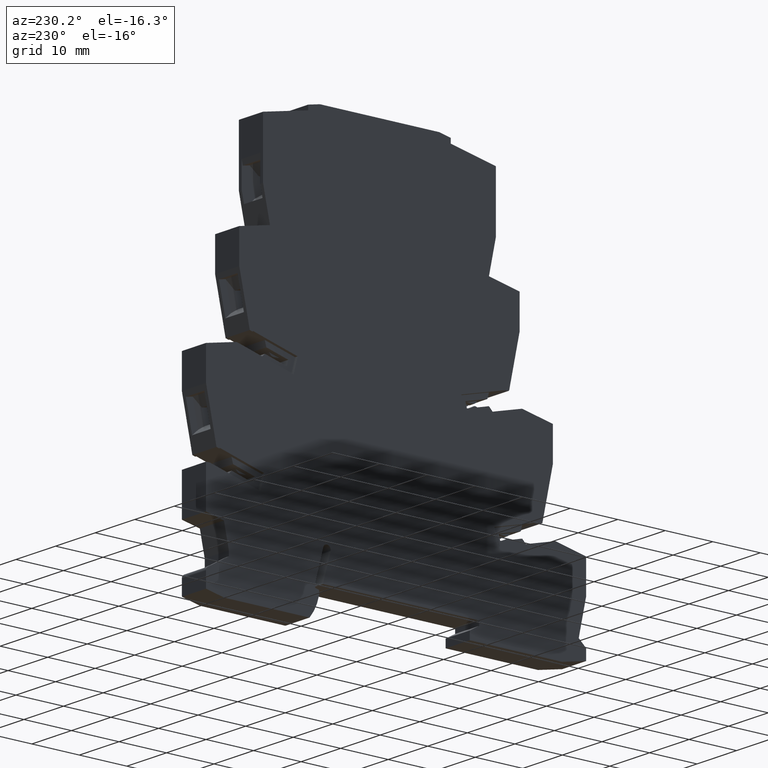
[diagram: clean part render]
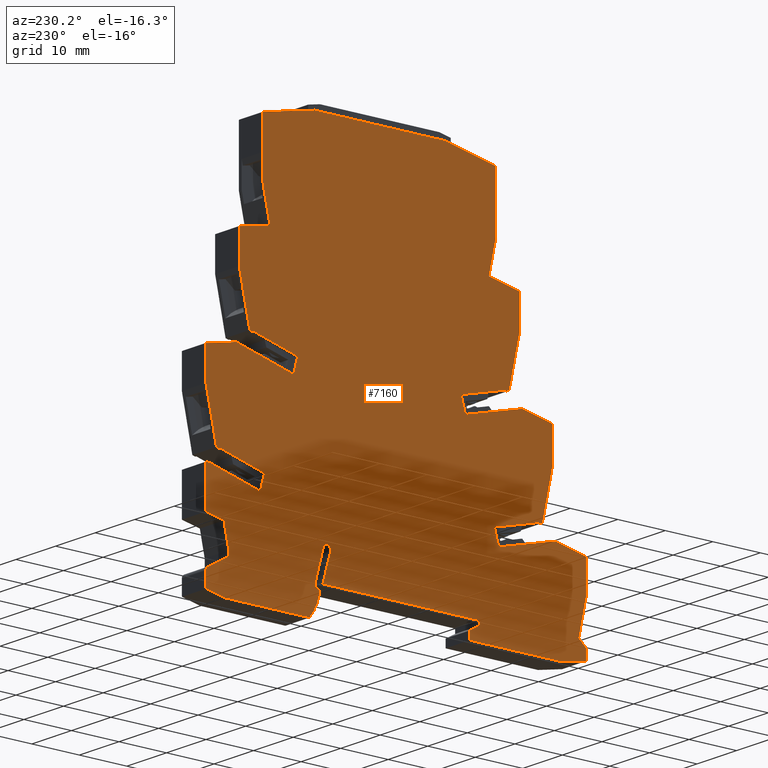
[diagram: same view with one face highlighted and labeled with its STEP entity id]
A machine part, auxiliary view. The second image highlights one B-rep face of the part: STEP entity #7160.
In plain terms, the highlighted planar face has unit normal (-1, 0, 0).
Its self-contained STEP definition (entity closure, byte-faithful):
#980=CARTESIAN_POINT('',(10.8989506709972,89.8469728276914,
-6.10000000000241));
#990=VERTEX_POINT('',#980);
#1560=CARTESIAN_POINT('',(32.3989506709835,-0.0400571378610444,
-6.10000000000098));
#1570=DIRECTION('',(6.88518490957563E-14,5.76150921077459E-16,-1.));
#1580=DIRECTION('',(-1.06445956345116E-13,-1.,-5.76150921084788E-16));
#1590=AXIS2_PLACEMENT_3D('',#1560,#1570,#1580);
#1600=PLANE('',#1590);
#1610=CARTESIAN_POINT('',(1.74895067094092,94.2842395895858,
-6.10000000000304));
#1620=DIRECTION('',(0.978147600733828,0.207911690817655,
6.74738043215939E-14));
#1630=VECTOR('',#1620,1.);
#1640=LINE('',#1610,#1630);
#1650=CARTESIAN_POINT('',(-28.601049329011,87.8331479429142,
-6.10000000000513));
#1660=VERTEX_POINT('',#1650);
#1670=CARTESIAN_POINT('',(-19.1010493290036,89.8524352787799,
-6.10000000000447));
#1680=VERTEX_POINT('',#1670);
#1690=EDGE_CURVE('',#1660,#1680,#1640,.T.);
#1700=ORIENTED_EDGE('',*,*,#1690,.T.);
#1710=CARTESIAN_POINT('',(-28.6010493290213,-8.45742666263268,
-6.10000000000518));
#1720=DIRECTION('',(1.06602284719999E-13,1.,5.76150921084798E-16));
#1730=VECTOR('',#1720,1.);
#1740=LINE('',#1710,#1730);
#1750=CARTESIAN_POINT('',(-28.6010493290123,75.8542440708255,
-6.10000000000514));
#1760=VERTEX_POINT('',#1750);
#1770=EDGE_CURVE('',#1760,#1660,#1740,.T.);
#1780=ORIENTED_EDGE('',*,*,#1770,.T.);
#1790=CARTESIAN_POINT('',(-13.1437031751925,3.13314794290579,
-6.10000000000747));
#1800=DIRECTION('',(-0.207911690817682,0.978147600733822,
8.36656496960324E-16));
#1810=VECTOR('',#1800,1.);
#1820=LINE('',#1790,#1810);
#1830=CARTESIAN_POINT('',(-27.1452751641698,69.0053651023039,
-6.10000000000504));
#1840=VERTEX_POINT('',#1830);
#1850=EDGE_CURVE('',#1840,#1760,#1820,.T.);
#1860=ORIENTED_EDGE('',*,*,#1850,.T.);
#1870=CARTESIAN_POINT('',(-0.601049329012426,74.6475144780145,
-6.10000000000744));
#1880=DIRECTION('',(0.978147600733828,0.207911690817653,
-1.16685635104763E-15));
#1890=VECTOR('',#1880,1.);
#1900=LINE('',#1870,#1890);
#1910=CARTESIAN_POINT('',(-33.6010493290131,67.6331479429074,
-6.10000000000315));
#1920=VERTEX_POINT('',#1910);
#1930=EDGE_CURVE('',#1920,#1840,#1900,.T.);
#1940=ORIENTED_EDGE('',*,*,#1930,.T.);
#1950=CARTESIAN_POINT('',(-33.60104932902,3.13314794290797,
-6.10000000000744));
#1960=DIRECTION('',(1.06602284719999E-13,1.,5.76150921084779E-16));
#1970=VECTOR('',#1960,1.);
#1980=LINE('',#1950,#1970);
#1990=CARTESIAN_POINT('',(-33.6010493290138,60.8995198602659,
-6.10000000000315));
#2000=VERTEX_POINT('',#1990);
#2010=EDGE_CURVE('',#2000,#1920,#1980,.T.);
#2020=ORIENTED_EDGE('',*,*,#2010,.T.);
#2030=CARTESIAN_POINT('',(-21.322427934116,3.13314794290666,
-6.10000000000746));
#2040=DIRECTION('',(0.207911690817634,-0.978147600733832,
-8.36656496960278E-16));
#2050=VECTOR('',#2040,1.);
#2060=LINE('',#2030,#2050);
#2070=CARTESIAN_POINT('',(-31.3969623182073,50.5301057453087,
-6.10000000000316));
#2080=VERTEX_POINT('',#2070);
#2090=EDGE_CURVE('',#2000,#2080,#2060,.T.);
#2100=ORIENTED_EDGE('',*,*,#2090,.F.);
#2110=CARTESIAN_POINT('',(-0.601049329015876,42.2783657296701,
-6.10000000000746));
#2120=DIRECTION('',(0.965925826289024,-0.258819045102685,
-1.41476425723172E-15));
#2130=VECTOR('',#2120,1.);
#2140=LINE('',#2110,#2130);
#2150=CARTESIAN_POINT('',(-30.7557445446555,50.3582919607129,
-6.10000000000316));
#2160=VERTEX_POINT('',#2150);
#2170=EDGE_CURVE('',#2080,#2160,#2140,.T.);
#2180=ORIENTED_EDGE('',*,*,#2170,.F.);
#2190=CARTESIAN_POINT('',(-43.4096837466777,3.13314794290902,
-6.10000000000743));
#2200=DIRECTION('',(0.258819045102677,0.965925826289027,
1.77488469595945E-16));
#2210=VECTOR('',#2200,1.);
#2220=LINE('',#2190,#2210);
#2230=CARTESIAN_POINT('',(-30.7169289084358,50.5031538872128,
-6.10000000000316));
#2240=VERTEX_POINT('',#2230);
#2250=EDGE_CURVE('',#2160,#2240,#2220,.T.);
#2260=ORIENTED_EDGE('',*,*,#2250,.F.);
#2270=CARTESIAN_POINT('',(-0.60104932901586,42.4336283140389,
-6.10000000000746));
#2280=DIRECTION('',(0.96592582628908,-0.258819045102478,
-1.41476425723167E-15));
#2290=VECTOR('',#2280,1.);
#2300=LINE('',#2270,#2290);
#2310=CARTESIAN_POINT('',(-21.3136920693128,47.9835641699302,
-6.10000000000317));
#2320=VERTEX_POINT('',#2310);
#2330=EDGE_CURVE('',#2240,#2320,#2300,.T.);
#2340=ORIENTED_EDGE('',*,*,#2330,.F.);
#2350=CARTESIAN_POINT('',(-33.3313248775482,3.13314794290794,
-6.10000000000744));
#2360=DIRECTION('',(-0.258819045102621,-0.965925826289041,
-1.91366257403826E-16));
#2370=VECTOR('',#2360,1.);
#2380=LINE('',#2350,#2370);
#2390=CARTESIAN_POINT('',(-22.16779491819,44.7960089430328,
-6.10000000000317));
#2400=VERTEX_POINT('',#2390);
#2410=EDGE_CURVE('',#2320,#2400,#2380,.T.);
#2420=ORIENTED_EDGE('',*,*,#2410,.F.);
#2430=CARTESIAN_POINT('',(-0.601049329016226,39.01721691871,
-6.10000000000746));
#2440=DIRECTION('',(-0.965925826289038,0.258819045102634,
1.4147642572317E-15));
#2450=VECTOR('',#2440,1.);
#2460=LINE('',#2430,#2450);
#2470=CARTESIAN_POINT('',(-34.1452751633213,48.0053651020769,
-6.10000000000316));
#2480=VERTEX_POINT('',#2470);
#2490=EDGE_CURVE('',#2400,#2480,#2460,.T.);
#2500=ORIENTED_EDGE('',*,*,#2490,.F.);
#2510=CARTESIAN_POINT('',(-0.601049329014506,55.1354104097048,
-6.10000000000745));
#2520=DIRECTION('',(0.978147600733828,0.207911690817653,
-1.16685635104763E-15));
#2530=VECTOR('',#2520,1.);
#2540=LINE('',#2510,#2530);
#2550=CARTESIAN_POINT('',(-40.6010493290153,46.6331479429083,
-6.10000000000315));
#2560=VERTEX_POINT('',#2550);
#2570=EDGE_CURVE('',#2560,#2480,#2540,.T.);
#2580=ORIENTED_EDGE('',*,*,#2570,.T.);
#2590=CARTESIAN_POINT('',(-40.60104932902,3.13314794290872,
-6.10000000000743));
#2600=DIRECTION('',(1.06602284719999E-13,1.,5.76150921084779E-16));
#2610=VECTOR('',#2600,1.);
#2620=LINE('',#2590,#2610);
#2630=CARTESIAN_POINT('',(-40.601049329016,39.8995198602663,
-6.10000000000315));
#2640=VERTEX_POINT('',#2630);
#2650=EDGE_CURVE('',#2640,#2560,#2620,.T.);
#2660=ORIENTED_EDGE('',*,*,#2650,.T.);
#2670=CARTESIAN_POINT('',(-32.7861157291861,3.13314794290788,
-6.10000000000744));
#2680=DIRECTION('',(-0.207911690817633,0.978147600733832,
8.36656496960276E-16));
#2690=VECTOR('',#2680,1.);
#2700=LINE('',#2670,#2690);
#2710=CARTESIAN_POINT('',(-38.3969558083118,29.5300751186479,
-6.10000000000316));
#2720=VERTEX_POINT('',#2710);
#2730=EDGE_CURVE('',#2720,#2640,#2700,.T.);
#2740=ORIENTED_EDGE('',*,*,#2730,.T.);
#2750=CARTESIAN_POINT('',(-0.601049329018316,19.4026925003169,
-6.10000000000747));
#2760=DIRECTION('',(-0.965925826289055,0.258819045102571,
1.40088646942388E-15));
#2770=VECTOR('',#2760,1.);
#2780=LINE('',#2750,#2770);
#2790=CARTESIAN_POINT('',(-37.7557517652426,29.358265013124,
-6.10000000000316));
#2800=VERTEX_POINT('',#2790);
#2810=EDGE_CURVE('',#2800,#2720,#2780,.T.);
#2820=ORIENTED_EDGE('',*,*,#2810,.T.);
#2830=CARTESIAN_POINT('',(-44.7827507056228,3.13314794290916,
-6.10000000000743));
#2840=DIRECTION('',(-0.258819045102677,-0.965925826289027,
-1.77488469595945E-16));
#2850=VECTOR('',#2840,1.);
#2860=LINE('',#2830,#2850);
#2870=CARTESIAN_POINT('',(-37.716928908438,29.5031538872136,
-6.10000000000316));
#2880=VERTEX_POINT('',#2870);
#2890=EDGE_CURVE('',#2880,#2800,#2860,.T.);
#2900=ORIENTED_EDGE('',*,*,#2890,.T.);
#2910=CARTESIAN_POINT('',(-0.601049329018299,19.5579839670222,
-6.10000000000747));
#2920=DIRECTION('',(0.96592582628908,-0.258819045102478,
-1.41476425723167E-15));
#2930=VECTOR('',#2920,1.);
#2940=LINE('',#2910,#2930);
#2950=CARTESIAN_POINT('',(-28.313692069315,26.9835641699309,
-6.10000000000318));
#2960=VERTEX_POINT('',#2950);
#2970=EDGE_CURVE('',#2880,#2960,#2940,.T.);
#2980=ORIENTED_EDGE('',*,*,#2970,.F.);
#2990=CARTESIAN_POINT('',(-34.7043918364946,3.13314794290809,
-6.10000000000744));
#3000=DIRECTION('',(-0.258819045102621,-0.965925826289041,
-1.91366257403826E-16));
#3010=VECTOR('',#3000,1.);
#3020=LINE('',#2990,#3010);
#3030=CARTESIAN_POINT('',(-29.1677949181921,23.7960089430335,
-6.10000000000318));
#3040=VERTEX_POINT('',#3030);
#3050=EDGE_CURVE('',#2960,#3040,#3020,.T.);
#3060=ORIENTED_EDGE('',*,*,#3050,.F.);
#3070=CARTESIAN_POINT('',(-0.601049329018663,16.1415725716921,
-6.10000000000748));
#3080=DIRECTION('',(-0.965925826289038,0.258819045102634,
1.4147642572317E-15));
#3090=VECTOR('',#3080,1.);
#3100=LINE('',#3070,#3090);
#3110=CARTESIAN_POINT('',(-41.1452751631027,27.0053651020184,
-6.10000000000316));
#3120=VERTEX_POINT('',#3110);
#3130=EDGE_CURVE('',#3040,#3120,#3100,.T.);
#3140=ORIENTED_EDGE('',*,*,#3130,.F.);
#3150=CARTESIAN_POINT('',(-0.601049329016586,35.6233063413949,
-6.10000000000747));
#3160=DIRECTION('',(0.978147600733828,0.207911690817653,
-1.16685635104763E-15));
#3170=VECTOR('',#3160,1.);
#3180=LINE('',#3150,#3170);
#3190=CARTESIAN_POINT('',(-47.6010493290177,25.6331479429089,
-6.10000000000315));
#3200=VERTEX_POINT('',#3190);
#3210=EDGE_CURVE('',#3200,#3120,#3180,.T.);
#3220=ORIENTED_EDGE('',*,*,#3210,.T.);
#3230=CARTESIAN_POINT('',(-47.6010493290201,3.13314794290946,
-6.10000000000742));
#3240=DIRECTION('',(1.06602284719999E-13,1.,5.76150921084779E-16));
#3250=VECTOR('',#3240,1.);
#3260=LINE('',#3230,#3250);
#3270=CARTESIAN_POINT('',(-47.6010493290184,18.8995198602677,
-6.10000000000316));
#3280=VERTEX_POINT('',#3270);
#3290=EDGE_CURVE('',#3280,#3200,#3260,.T.);
#3300=ORIENTED_EDGE('',*,*,#3290,.T.);
#3310=CARTESIAN_POINT('',(-44.2498035242559,3.1331479429091,
-6.10000000000743));
#3320=DIRECTION('',(-0.207911690817639,0.978147600733831,
8.36656496960283E-16));
#3330=VECTOR('',#3320,1.);
#3340=LINE('',#3310,#3330);
#3350=CARTESIAN_POINT('',(-46.0467112146495,11.5869339670936,
-6.10000000000316));
#3360=VERTEX_POINT('',#3350);
#3370=EDGE_CURVE('',#3360,#3280,#3340,.T.);
#3380=ORIENTED_EDGE('',*,*,#3370,.T.);
#3390=CARTESIAN_POINT('',(-0.601049329014787,52.506391724697,
-6.10000000000746));
#3400=DIRECTION('',(0.743144825477511,0.669130606358729,
-5.45619497438081E-16));
#3410=VECTOR('',#3400,1.);
#3420=LINE('',#3390,#3410);
#3430=CARTESIAN_POINT('',(-47.6010493290193,10.1874016427093,
-6.10000000000316));
#3440=VERTEX_POINT('',#3430);
#3450=EDGE_CURVE('',#3440,#3360,#3420,.T.);
#3460=ORIENTED_EDGE('',*,*,#3450,.T.);
#3470=CARTESIAN_POINT('',(-47.60104932902,3.13314794290946,
-6.10000000000742));
#3480=DIRECTION('',(1.06602284719999E-13,1.,5.76150921084779E-16));
#3490=VECTOR('',#3480,1.);
#3500=LINE('',#3470,#3490);
#3510=CARTESIAN_POINT('',(-47.6010493290195,8.00655857934256,
-6.10000000000317));
#3520=VERTEX_POINT('',#3510);
#3530=EDGE_CURVE('',#3520,#3440,#3500,.T.);
#3540=ORIENTED_EDGE('',*,*,#3530,.T.);
#3550=CARTESIAN_POINT('',(-0.601049329020595,-1.98359981915347,
-6.10000000000749));
#3560=DIRECTION('',(-0.978147600733784,0.207911690817864,
1.41630385889092E-15));
#3570=VECTOR('',#3560,1.);
#3580=LINE('',#3550,#3570);
#3590=CARTESIAN_POINT('',(-42.5510493290197,6.93314794290844,
-6.10000000000317));
#3600=VERTEX_POINT('',#3590);
#3610=EDGE_CURVE('',#3600,#3520,#3580,.T.);
#3620=ORIENTED_EDGE('',*,*,#3610,.T.);
#3630=CARTESIAN_POINT('',(-0.601049329019645,6.93314794290397,
-6.10000000000748));
#3640=DIRECTION('',(-1.,1.06602284719999E-13,1.3170771381577E-15));
#3650=VECTOR('',#3640,1.);
#3660=LINE('',#3630,#3650);
#3670=CARTESIAN_POINT('',(-23.101049329018,6.93314794290637,
-6.10000000000319));
#3680=VERTEX_POINT('',#3670);
#3690=EDGE_CURVE('',#3680,#3600,#3660,.T.);
#3700=ORIENTED_EDGE('',*,*,#3690,.T.);
#3710=CARTESIAN_POINT('',(-23.1010493290184,3.13314794290685,
-6.10000000000746));
#3720=DIRECTION('',(-1.06602284719999E-13,-1.,-5.76150921084779E-16));
#3730=VECTOR('',#3720,1.);
#3740=LINE('',#3710,#3730);
#3750=CARTESIAN_POINT('',(-23.1010493290178,8.57844740452719,
-6.10000000000319));
#3760=VERTEX_POINT('',#3750);
#3770=EDGE_CURVE('',#3760,#3680,#3740,.T.);
#3780=ORIENTED_EDGE('',*,*,#3770,.T.);
#3790=CARTESIAN_POINT('',(-0.601049329020853,-4.41193365224082,
-6.10000000000749));
#3800=DIRECTION('',(0.866025403784386,-0.500000000000092,
-1.42819013671019E-15));
#3810=VECTOR('',#3800,1.);
#3820=LINE('',#3790,#3810);
#3830=CARTESIAN_POINT('',(-25.1010493290175,9.73314794290655,
-6.10000000000319));
#3840=VERTEX_POINT('',#3830);
#3850=EDGE_CURVE('',#3840,#3760,#3820,.T.);
#3860=ORIENTED_EDGE('',*,*,#3850,.T.);
#3870=CARTESIAN_POINT('',(-25.1010493290182,3.13314794290706,
-6.10000000000745));
#3880=DIRECTION('',(-1.06602284719999E-13,-1.,-5.76150921084779E-16));
#3890=VECTOR('',#3880,1.);
#3900=LINE('',#3870,#3890);
#3910=CARTESIAN_POINT('',(-25.1010493290174,10.6331479429065,
-6.10000000000319));
#3920=VERTEX_POINT('',#3910);
#3930=EDGE_CURVE('',#3920,#3840,#3900,.T.);
#3940=ORIENTED_EDGE('',*,*,#3930,.T.);
#3950=CARTESIAN_POINT('',(-0.601049329019251,10.6331479429039,
-6.10000000000748));
#3960=DIRECTION('',(-1.,1.06602284719999E-13,1.3170771381577E-15));
#3970=VECTOR('',#3960,1.);
#3980=LINE('',#3950,#3970);
#3990=CARTESIAN_POINT('',(7.7989506709826,10.633147942903,
-6.10000000000323));
#4000=VERTEX_POINT('',#3990);
#4010=EDGE_CURVE('',#4000,#3920,#3980,.T.);
#4020=ORIENTED_EDGE('',*,*,#4010,.T.);
#4030=CARTESIAN_POINT('',(9.89994689253789,3.13314794290333,
-6.1000000000075));
#4040=DIRECTION('',(0.269748530351836,-0.962930802484283,
-8.81472112415661E-16));
#4050=VECTOR('',#4040,1.);
#4060=LINE('',#4030,#4050);
#4070=CARTESIAN_POINT('',(6.17860602899581,16.4173491186216,
-6.10000000000322));
#4080=VERTEX_POINT('',#4070);
#4090=EDGE_CURVE('',#4080,#4000,#4060,.T.);
#4100=ORIENTED_EDGE('',*,*,#4090,.T.);
#4110=CARTESIAN_POINT('',(6.94895067098324,16.6331479429031,
-6.10000000000749));
#4120=DIRECTION('',(-1.31707713815764E-15,4.99765413870018E-16,-1.));
#4130=DIRECTION('',(-1.,1.06602284719999E-13,1.3170771381577E-15));
#4140=AXIS2_PLACEMENT_3D('',#4110,#4120,#4130);
#4150=CIRCLE('',#4140,0.799999999999996);
#4160=CARTESIAN_POINT('',(7.72125156992697,16.8418374766384,
-6.10000000000323));
#4170=VERTEX_POINT('',#4160);
#4180=EDGE_CURVE('',#4080,#4170,#4150,.T.);
#4190=ORIENTED_EDGE('',*,*,#4180,.F.);
#4200=CARTESIAN_POINT('',(11.4255849856067,3.13314794290317,
-6.1000000000075));
#4210=DIRECTION('',(-0.260861917169094,0.965376123679711,
8.73166436418724E-16));
#4220=VECTOR('',#4210,1.);
#4230=LINE('',#4200,#4220);
#4240=CARTESIAN_POINT('',(9.39895067098262,10.6331479429025,
-6.10000000000323));
#4250=VERTEX_POINT('',#4240);
#4260=EDGE_CURVE('',#4250,#4170,#4230,.T.);
#4270=ORIENTED_EDGE('',*,*,#4260,.T.);
#4280=CARTESIAN_POINT('',(9.39895067098182,3.13314794290339,
-6.1000000000075));
#4290=DIRECTION('',(1.06602284719999E-13,1.,5.76150921084779E-16));
#4300=VECTOR('',#4290,1.);
#4310=LINE('',#4280,#4300);
#4320=CARTESIAN_POINT('',(9.39895067098252,9.68314794290287,
-6.10000000000323));
#4330=VERTEX_POINT('',#4320);
#4340=EDGE_CURVE('',#4330,#4250,#4310,.T.);
#4350=ORIENTED_EDGE('',*,*,#4340,.T.);
#4360=CARTESIAN_POINT('',(-0.601049329019636,7.00365601859221,
-6.10000000000748));
#4370=DIRECTION('',(0.965925826289096,0.258819045102417,
-1.10055549161431E-15));
#4380=VECTOR('',#4370,1.);
#4390=LINE('',#4360,#4380);
#4400=CARTESIAN_POINT('',(8.59895067098264,9.46878858895809,
-6.10000000000323));
#4410=VERTEX_POINT('',#4400);
#4420=EDGE_CURVE('',#4410,#4330,#4390,.T.);
#4430=ORIENTED_EDGE('',*,*,#4420,.T.);
#4440=CARTESIAN_POINT('',(8.59895067098196,3.13314794290347,
-6.1000000000075));
#4450=DIRECTION('',(1.06602284719999E-13,1.,5.76150921084779E-16));
#4460=VECTOR('',#4450,1.);
#4470=LINE('',#4440,#4460);
#4480=CARTESIAN_POINT('',(8.59895067098254,8.59407599993609,
-6.10000000000323));
#4490=VERTEX_POINT('',#4480);
#4500=EDGE_CURVE('',#4490,#4410,#4470,.T.);
#4510=ORIENTED_EDGE('',*,*,#4500,.T.);
#4520=CARTESIAN_POINT('',(17.8989506709827,10.533147942902,
-6.1000000000075));
#4530=DIRECTION('',(-1.31707713815764E-15,4.99765413870018E-16,-1.));
#4540=DIRECTION('',(-1.,1.06602284719999E-13,1.3170771381577E-15));
#4550=AXIS2_PLACEMENT_3D('',#4520,#4530,#4540);
#4560=CIRCLE('',#4550,9.49999999999998);
#4570=CARTESIAN_POINT('',(10.6160940885687,4.43314794290277,
-6.10000000000324));
#4580=VERTEX_POINT('',#4570);
#4590=EDGE_CURVE('',#4580,#4490,#4560,.T.);
#4600=ORIENTED_EDGE('',*,*,#4590,.T.);
#4610=CARTESIAN_POINT('',(-0.60104932901991,4.43314794290397,
-6.10000000000748));
#4620=DIRECTION('',(-1.,1.06602284719999E-13,1.3170771381577E-15));
#4630=VECTOR('',#4620,1.);
#4640=LINE('',#4610,#4630);
#4650=CARTESIAN_POINT('',(28.5989506709821,4.43314794290086,
-6.10000000000326));
#4660=VERTEX_POINT('',#4650);
#4670=EDGE_CURVE('',#4660,#4580,#4640,.T.);
#4680=ORIENTED_EDGE('',*,*,#4670,.T.);
#4690=CARTESIAN_POINT('',(-0.601049329020567,-1.71422047814926,
-6.10000000000749));
#4700=DIRECTION('',(-0.97854978498677,-0.206010481049743,
1.16823771090441E-15));
#4710=VECTOR('',#4700,1.);
#4720=LINE('',#4690,#4710);
#4730=CARTESIAN_POINT('',(32.3989506709822,5.23314794290048,
-6.10000000000326));
#4740=VERTEX_POINT('',#4730);
#4750=EDGE_CURVE('',#4740,#4660,#4720,.T.);
#4760=ORIENTED_EDGE('',*,*,#4750,.T.);
#4770=CARTESIAN_POINT('',(32.398950670982,3.13314794290093,
-6.10000000000753));
#4780=DIRECTION('',(-1.06602284719999E-13,-1.,-5.76150921084779E-16));
#4790=VECTOR('',#4780,1.);
#4800=LINE('',#4770,#4790);
#4810=CARTESIAN_POINT('',(32.3989506709825,8.34088296981991,
-6.10000000000326));
#4820=VERTEX_POINT('',#4810);
#4830=EDGE_CURVE('',#4820,#4740,#4800,.T.);
#4840=ORIENTED_EDGE('',*,*,#4830,.T.);
#4850=CARTESIAN_POINT('',(31.5989506709825,8.34088296981999,
-6.10000000000752));
#4860=DIRECTION('',(1.31707713815764E-15,-4.99765413870018E-16,1.));
#4870=DIRECTION('',(1.,-1.06602284719999E-13,-1.3170771381577E-15));
#4880=AXIS2_PLACEMENT_3D('',#4850,#4860,#4870);
#4890=CIRCLE('',#4880,0.8);
#4900=CARTESIAN_POINT('',(31.9989506709827,9.03370329284742,
-6.10000000000326));
#4910=VERTEX_POINT('',#4900);
#4920=EDGE_CURVE('',#4820,#4910,#4890,.T.);
#4930=ORIENTED_EDGE('',*,*,#4920,.F.);
#4940=CARTESIAN_POINT('',(-0.601049329017414,27.855322068434,
-6.10000000000747));
#4950=DIRECTION('',(0.866025403784385,-0.500000000000093,
-1.42819013671019E-15));
#4960=VECTOR('',#4950,1.);
#4970=LINE('',#4940,#4960);
#4980=CARTESIAN_POINT('',(27.5958048210104,11.5758607346108,
-6.10000000000325));
#4990=VERTEX_POINT('',#4980);
#5000=EDGE_CURVE('',#4990,#4910,#4970,.T.);
#5010=ORIENTED_EDGE('',*,*,#5000,.T.);
#5020=CARTESIAN_POINT('',(27.568594050848,-8.46685205709855,
-6.10000000000326));
#5030=DIRECTION('',(-0.00135763782916579,-0.999999078409338,
-5.74528539016412E-16));
#5040=VECTOR('',#5030,1.);
#5050=LINE('',#5020,#5040);
#5060=CARTESIAN_POINT('',(27.5971836341222,12.5914569500231,
-6.10000000000325));
#5070=VERTEX_POINT('',#5060);
#5080=EDGE_CURVE('',#5070,#4990,#5050,.T.);
#5090=ORIENTED_EDGE('',*,*,#5080,.T.);
#5100=CARTESIAN_POINT('',(25.6059606852535,3.13314794290166,
-6.10000000000752));
#5110=DIRECTION('',(-0.206010481049947,-0.978549784986727,
-3.09805013435353E-16));
#5120=VECTOR('',#5110,1.);
#5130=LINE('',#5100,#5120);
#5140=CARTESIAN_POINT('',(28.6173002801197,17.4370110185085,
-6.10000000000325));
#5150=VERTEX_POINT('',#5140);
#5160=EDGE_CURVE('',#5150,#5070,#5130,.T.);
#5170=ORIENTED_EDGE('',*,*,#5160,.T.);
#5180=CARTESIAN_POINT('',(-0.601049329019181,11.2857795218508,
-6.10000000000748));
#5190=DIRECTION('',(-0.97854978498677,-0.206010481049741,
1.16823771090441E-15));
#5200=VECTOR('',#5190,1.);
#5210=LINE('',#5180,#5200);
#5220=CARTESIAN_POINT('',(32.3989506709834,18.2331479429004,
-6.10000000000325));
#5230=VERTEX_POINT('',#5220);
#5240=EDGE_CURVE('',#5230,#5150,#5210,.T.);
#5250=ORIENTED_EDGE('',*,*,#5240,.T.);
#5260=CARTESIAN_POINT('',(32.3989506709806,-8.46685205709906,
-6.10000000000327));
#5270=DIRECTION('',(1.06602284719999E-13,1.,5.76150921084779E-16));
#5280=VECTOR('',#5270,1.);
#5290=LINE('',#5260,#5280);
#5300=CARTESIAN_POINT('',(32.3989506709843,26.6331479429003,
-6.10000000000325));
#5310=VERTEX_POINT('',#5300);
#5320=EDGE_CURVE('',#5230,#5310,#5290,.T.);
#5330=ORIENTED_EDGE('',*,*,#5320,.F.);
#5340=CARTESIAN_POINT('',(-9.95104932901536,26.6331479428957,
-6.1000000000032));
#5350=DIRECTION('',(1.,1.09866661223287E-13,-1.19461247936883E-15));
#5360=VECTOR('',#5350,1.);
#5370=LINE('',#5340,#5360);
#5380=CARTESIAN_POINT('',(31.554043155819,26.6331479429002,
-6.10000000000325));
#5390=VERTEX_POINT('',#5380);
#5400=EDGE_CURVE('',#5390,#5310,#5370,.T.);
#5410=ORIENTED_EDGE('',*,*,#5400,.T.);
#5420=CARTESIAN_POINT('',(-9.95104932901654,15.5118919298147,
-6.10000000000321));
#5430=DIRECTION('',(-0.965925826289099,-0.258819045102406,
1.0047882149996E-15));
#5440=VECTOR('',#5430,1.);
#5450=LINE('',#5420,#5440);
#5460=CARTESIAN_POINT('',(20.9656962612527,23.7960089433219,
-6.10000000000324));
#5470=VERTEX_POINT('',#5460);
#5480=EDGE_CURVE('',#5390,#5470,#5450,.T.);
#5490=ORIENTED_EDGE('',*,*,#5480,.F.);
#5500=CARTESIAN_POINT('',(26.5022931796294,3.13314794290156,
-6.10000000000752));
#5510=DIRECTION('',(-0.258819045102415,0.965925826289097,
8.71250897936794E-16));
#5520=VECTOR('',#5510,1.);
#5530=LINE('',#5500,#5520);
#5540=CARTESIAN_POINT('',(20.1115934124917,26.9835641697886,
-6.10000000000323));
#5550=VERTEX_POINT('',#5540);
#5560=EDGE_CURVE('',#5470,#5550,#5530,.T.);
#5570=ORIENTED_EDGE('',*,*,#5560,.F.);
#5580=CARTESIAN_POINT('',(-0.6010493290181,21.4336282740896,
-6.10000000000747));
#5590=DIRECTION('',(0.9659258262891,0.258819045102402,
-1.08667770380651E-15));
#5600=VECTOR('',#5590,1.);
#5610=LINE('',#5580,#5600);
#5620=CARTESIAN_POINT('',(29.5252846873581,29.5059551446838,
-6.10000000000325));
#5630=VERTEX_POINT('',#5620);
#5640=EDGE_CURVE('',#5550,#5630,#5610,.T.);
#5650=ORIENTED_EDGE('',*,*,#5640,.F.);
#5660=CARTESIAN_POINT('',(36.2435231290557,4.43314794290032,
-6.10000000000753));
#5670=DIRECTION('',(-0.258819045102467,0.965925826289083,
9.17278056494276E-16));
#5680=VECTOR('',#5670,1.);
#5690=LINE('',#5660,#5680);
#5700=CARTESIAN_POINT('',(29.5641075440464,29.3610662710281,
-6.10000000000325));
#5710=VERTEX_POINT('',#5700);
#5720=EDGE_CURVE('',#5710,#5630,#5690,.T.);
#5730=ORIENTED_EDGE('',*,*,#5720,.T.);
#5740=CARTESIAN_POINT('',(32.3989506709849,30.12066019756,
-6.10000000000751));
#5750=DIRECTION('',(-0.965925826289082,-0.258819045102468,
1.08078546757723E-15));
#5760=VECTOR('',#5750,1.);
#5770=LINE('',#5740,#5760);
#5780=CARTESIAN_POINT('',(30.1948571514967,29.5300751189706,
-6.10000000000325));
#5790=VERTEX_POINT('',#5780);
#5800=EDGE_CURVE('',#5790,#5710,#5770,.T.);
#5810=ORIENTED_EDGE('',*,*,#5800,.T.);
#5820=CARTESIAN_POINT('',(24.5840170722953,3.13314794290177,
-6.10000000000752));
#5830=DIRECTION('',(-0.207911690817841,-0.978147600733788,
-2.93687849938804E-16));
#5840=VECTOR('',#5830,1.);
#5850=LINE('',#5820,#5840);
#5860=CARTESIAN_POINT('',(32.3989506710355,39.8995198550947,
-6.10000000000324));
#5870=VERTEX_POINT('',#5860);
#5880=EDGE_CURVE('',#5870,#5790,#5850,.T.);
#5890=ORIENTED_EDGE('',*,*,#5880,.T.);
#5900=CARTESIAN_POINT('',(32.3989506721292,3.13314794290093,
-6.10000000000753));
#5910=DIRECTION('',(-1.06602284719999E-13,-1.,-5.76150921084779E-16));
#5920=VECTOR('',#5910,1.);
#5930=LINE('',#5900,#5920);
#5940=CARTESIAN_POINT('',(32.3989506720842,46.633147942911,
-6.10000000000324));
#5950=VERTEX_POINT('',#5940);
#5960=EDGE_CURVE('',#5950,#5870,#5930,.T.);
#5970=ORIENTED_EDGE('',*,*,#5960,.T.);
#5980=CARTESIAN_POINT('',(-0.601049329014664,53.6475144782589,
-6.10000000000746));
#5990=DIRECTION('',(0.978147600733784,-0.207911690817861,
-1.41630385889092E-15));
#6000=VECTOR('',#5990,1.);
#6010=LINE('',#5980,#6000);
#6020=CARTESIAN_POINT('',(25.9431765073129,48.0053651022936,
-6.10000000000323));
#6030=VERTEX_POINT('',#6020);
#6040=EDGE_CURVE('',#6030,#5950,#6010,.T.);
#6050=ORIENTED_EDGE('',*,*,#6040,.T.);
#6060=CARTESIAN_POINT('',(-0.601049329016023,40.8928612256255,
-6.10000000000746));
#6070=DIRECTION('',(-0.965925826289058,-0.258819045102559,
1.1005554916142E-15));
#6080=VECTOR('',#6070,1.);
#6090=LINE('',#6060,#6080);
#6100=CARTESIAN_POINT('',(13.9656962624356,44.7960089432052,
-6.10000000000322));
#6110=VERTEX_POINT('',#6100);
#6120=EDGE_CURVE('',#6030,#6110,#6090,.T.);
#6130=ORIENTED_EDGE('',*,*,#6120,.F.);
#6140=CARTESIAN_POINT('',(25.1292262218322,3.13314794290171,
-6.10000000000752));
#6150=DIRECTION('',(-0.258819045102415,0.965925826289097,
8.71250897936794E-16));
#6160=VECTOR('',#6150,1.);
#6170=LINE('',#6140,#6160);
#6180=CARTESIAN_POINT('',(13.1115934136047,47.9835641699331,
-6.10000000000321));
#6190=VERTEX_POINT('',#6180);
#6200=EDGE_CURVE('',#6110,#6190,#6170,.T.);
#6210=ORIENTED_EDGE('',*,*,#6200,.F.);
#6220=CARTESIAN_POINT('',(-0.601049329015661,44.3092726209533,
-6.10000000000746));
#6230=DIRECTION('',(0.9659258262891,0.258819045102402,
-1.08667770380651E-15));
#6240=VECTOR('',#6230,1.);
#6250=LINE('',#6220,#6240);
#6260=CARTESIAN_POINT('',(22.5252846873977,50.5059551445406,
-6.10000000000322));
#6270=VERTEX_POINT('',#6260);
#6280=EDGE_CURVE('',#6190,#6270,#6250,.T.);
#6290=ORIENTED_EDGE('',*,*,#6280,.F.);
#6300=CARTESIAN_POINT('',(35.21879012142,3.13314794290063,
-6.10000000000753));
#6310=DIRECTION('',(0.258819045102467,-0.965925826289083,
-8.71250897936843E-16));
#6320=VECTOR('',#6310,1.);
#6330=LINE('',#6300,#6320);
#6340=CARTESIAN_POINT('',(22.5641075440476,50.3610662710284,
-6.10000000000322));
#6350=VERTEX_POINT('',#6340);
#6360=EDGE_CURVE('',#6270,#6350,#6330,.T.);
#6370=ORIENTED_EDGE('',*,*,#6360,.F.);
#6380=CARTESIAN_POINT('',(-0.601049329015677,44.1539811943522,
-6.10000000000746));
#6390=DIRECTION('',(-0.965925826289082,-0.258819045102468,
1.10055549161427E-15));
#6400=VECTOR('',#6390,1.);
#6410=LINE('',#6380,#6400);
#6420=CARTESIAN_POINT('',(23.1948571515762,50.5300751193346,
-6.10000000000322));
#6430=VERTEX_POINT('',#6420);
#6440=EDGE_CURVE('',#6430,#6350,#6410,.T.);
#6450=ORIENTED_EDGE('',*,*,#6440,.T.);
#6460=CARTESIAN_POINT('',(13.1203292772253,3.13314794290299,
-6.1000000000075));
#6470=DIRECTION('',(-0.207911690817843,-0.978147600733788,
-2.93687849938802E-16));
#6480=VECTOR('',#6470,1.);
#6490=LINE('',#6460,#6480);
#6500=CARTESIAN_POINT('',(25.3989506721355,60.8995198602596,
-6.10000000000322));
#6510=VERTEX_POINT('',#6500);
#6520=EDGE_CURVE('',#6510,#6430,#6490,.T.);
#6530=ORIENTED_EDGE('',*,*,#6520,.T.);
#6540=CARTESIAN_POINT('',(25.3989506721293,3.13314794290168,
-6.10000000000752));
#6550=DIRECTION('',(-1.06602284719999E-13,-1.,-5.76150921084779E-16));
#6560=VECTOR('',#6550,1.);
#6570=LINE('',#6540,#6560);
#6580=CARTESIAN_POINT('',(25.3989506721362,67.6331479429011,
-6.10000000000322));
#6590=VERTEX_POINT('',#6580);
#6600=EDGE_CURVE('',#6590,#6510,#6570,.T.);
#6610=ORIENTED_EDGE('',*,*,#6600,.T.);
#6620=CARTESIAN_POINT('',(-0.601049329012586,73.1596185465687,
-6.10000000000744));
#6630=DIRECTION('',(0.978147600733784,-0.207911690817861,
-1.41630385889092E-15));
#6640=VECTOR('',#6630,1.);
#6650=LINE('',#6620,#6640);
#6660=CARTESIAN_POINT('',(18.9431765061954,69.0053651025324,
-6.10000000000321));
#6670=VERTEX_POINT('',#6660);
#6680=EDGE_CURVE('',#6670,#6590,#6650,.T.);
#6690=ORIENTED_EDGE('',*,*,#6680,.T.);
#6700=CARTESIAN_POINT('',(4.94160451715567,3.13314794290386,
-6.10000000000749));
#6710=DIRECTION('',(-0.207911690817874,-0.978147600733781,
-2.93687849938766E-16));
#6720=VECTOR('',#6710,1.);
#6730=LINE('',#6700,#6720);
#6740=CARTESIAN_POINT('',(20.3989506709896,75.8542440708203,
-6.10000000000321));
#6750=VERTEX_POINT('',#6740);
#6760=EDGE_CURVE('',#6750,#6670,#6730,.T.);
#6770=ORIENTED_EDGE('',*,*,#6760,.T.);
#6780=CARTESIAN_POINT('',(20.3989506709799,3.13314794290221,
-6.1000000000077));
#6790=DIRECTION('',(-1.06602284719999E-13,-1.,-5.76150921084779E-16));
#6800=VECTOR('',#6790,1.);
#6810=LINE('',#6780,#6800);
#6820=CARTESIAN_POINT('',(20.398950670991,87.8331479429023,
-6.1000000000032));
#6830=VERTEX_POINT('',#6820);
#6840=EDGE_CURVE('',#6830,#6750,#6810,.T.);
#6850=ORIENTED_EDGE('',*,*,#6840,.T.);
#6860=CARTESIAN_POINT('',(1.74895067094092,91.786604164128,
-6.10000000000304));
#6870=DIRECTION('',(-0.978261846449827,0.207373478971097,
-6.72517597166689E-14));
#6880=VECTOR('',#6870,1.);
#6890=LINE('',#6860,#6880);
#6900=EDGE_CURVE('',#6830,#990,#6890,.T.);
#6910=ORIENTED_EDGE('',*,*,#6900,.F.);
#6920=CARTESIAN_POINT('',(1.74895067094092,91.7866041641104,
-6.10000000000304));
#6930=DIRECTION('',(0.978261846449827,-0.207373478971097,
6.72517597166689E-14));
#6940=VECTOR('',#6930,1.);
#6950=LINE('',#6920,#6940);
#6960=CARTESIAN_POINT('',(9.54895067084991,90.1331479429303,
-6.1000000000025));
#6970=VERTEX_POINT('',#6960);
#6980=EDGE_CURVE('',#6970,#990,#6950,.T.);
#6990=ORIENTED_EDGE('',*,*,#6980,.T.);
#7000=CARTESIAN_POINT('',(1.74895067094092,90.1331479429311,
-6.10000000000304));
#7010=DIRECTION('',(1.,-1.06264632095782E-13,6.88518490957562E-14));
#7020=VECTOR('',#7010,1.);
#7030=LINE('',#7000,#7020);
#7040=CARTESIAN_POINT('',(-17.7804000771138,90.1331479429331,
-6.10000000000438));
#7050=VERTEX_POINT('',#7040);
#7060=EDGE_CURVE('',#7050,#6970,#7030,.T.);
#7070=ORIENTED_EDGE('',*,*,#7060,.T.);
#7080=CARTESIAN_POINT('',(1.74895067094092,94.2842395895854,
-6.10000000000304));
#7090=DIRECTION('',(0.978147600733828,0.207911690817655,
6.74738043215939E-14));
#7100=VECTOR('',#7090,1.);
#7110=LINE('',#7080,#7100);
#7120=EDGE_CURVE('',#1680,#7050,#7110,.T.);
#7130=ORIENTED_EDGE('',*,*,#7120,.T.);
#7140=EDGE_LOOP('',(#7130,#7070,#6990,#6910,#6850,#6770,#6690,#6610,
#6530,#6450,#6370,#6290,#6210,#6130,#6050,#5970,#5890,#5810,#5730,#5650,
#5570,#5490,#5410,#5330,#5250,#5170,#5090,#5010,#4930,#4840,#4760,#4680,
#4600,#4510,#4430,#4350,#4270,#4190,#4100,#4020,#3940,#3860,#3780,#3700,
#3620,#3540,#3460,#3380,#3300,#3220,#3140,#3060,#2980,#2900,#2820,#2740,
#2660,#2580,#2500,#2420,#2340,#2260,#2180,#2100,#2020,#1940,#1860,#1780,
#1700));
#7150=FACE_OUTER_BOUND('',#7140,.T.);
#7160=ADVANCED_FACE('',(#7150),#1600,.T.);